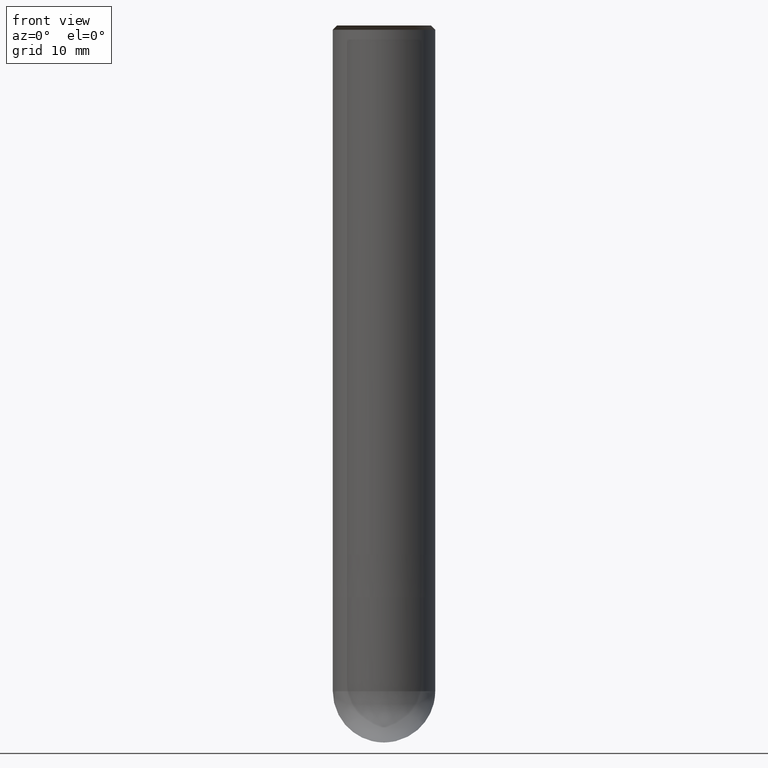
[diagram: clean part render]
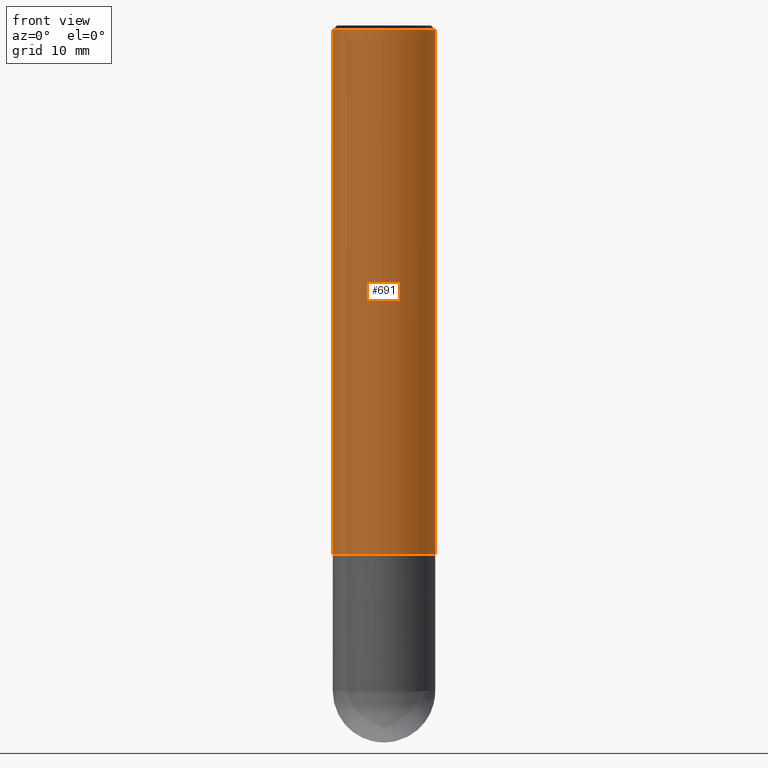
[diagram: same view with one face highlighted and labeled with its STEP entity id]
A machine part, front view. The second image highlights one B-rep face of the part: STEP entity #691.
In plain terms, the highlighted face is a freeform B-spline surface patch.
Its self-contained STEP definition (entity closure, byte-faithful):
#406=CARTESIAN_POINT('',(6.0,0.0,0.0));
#410=CARTESIAN_POINT('',(-6.0,0.0,0.0));
#411=CARTESIAN_POINT('',(6.0,0.0,61.5));
#415=CARTESIAN_POINT('',(-6.0,0.0,61.5));
#422=CARTESIAN_POINT('',(-6.0,-6.0,0.0));
#423=CARTESIAN_POINT('',(0.0,-6.0,0.0));
#424=CARTESIAN_POINT('',(6.0,-6.0,0.0));
#425=CARTESIAN_POINT('',(-6.0,-6.0,61.5));
#426=CARTESIAN_POINT('',(0.0,-6.0,61.5));
#427=CARTESIAN_POINT('',(6.0,-6.0,61.5));
#672=(
BOUNDED_SURFACE()
B_SPLINE_SURFACE(1,2,(
(#410,#422,#423,#424,#406),
(#415,#425,#426,#427,#411)
), .UNSPECIFIED.,.F.,.F.,.F.)
B_SPLINE_SURFACE_WITH_KNOTS((2,2),(3,2,3),(
0.0,1.0),(
0.0,0.5,1.0), .UNSPECIFIED.)
GEOMETRIC_REPRESENTATION_ITEM()
RATIONAL_B_SPLINE_SURFACE(((1.0,0.707106781187,1.0,0.707106781187,1.0),
(1.0,0.707106781187,1.0,0.707106781187,1.0)
))
REPRESENTATION_ITEM('')
SURFACE()
);
#673=(
BOUNDED_CURVE()
B_SPLINE_CURVE(2,(#406,#424,#423,#422,#410),.UNSPECIFIED.,.F.,.F.)
B_SPLINE_CURVE_WITH_KNOTS((3,2,3),
(0.0,0.5,1.0),.UNSPECIFIED.)
CURVE()
GEOMETRIC_REPRESENTATION_ITEM()
RATIONAL_B_SPLINE_CURVE((1.0,0.707106781187,1.0,0.707106781187,1.0))
REPRESENTATION_ITEM('')
);
#674=(
BOUNDED_CURVE()
B_SPLINE_CURVE(1,(#410,#415),.UNSPECIFIED.,.F.,.F.)
B_SPLINE_CURVE_WITH_KNOTS((2,2),
(0.0,1.0),.UNSPECIFIED.)
CURVE()
GEOMETRIC_REPRESENTATION_ITEM()
RATIONAL_B_SPLINE_CURVE((1.0,1.0))
REPRESENTATION_ITEM('')
);
#675=(
BOUNDED_CURVE()
B_SPLINE_CURVE(2,(#415,#425,#426,#427,#411),.UNSPECIFIED.,.F.,.F.)
B_SPLINE_CURVE_WITH_KNOTS((3,2,3),
(0.0,0.5,1.0),.UNSPECIFIED.)
CURVE()
GEOMETRIC_REPRESENTATION_ITEM()
RATIONAL_B_SPLINE_CURVE((1.0,0.707106781187,1.0,0.707106781187,1.0))
REPRESENTATION_ITEM('')
);
#676=(
BOUNDED_CURVE()
B_SPLINE_CURVE(1,(#411,#406),.UNSPECIFIED.,.F.,.F.)
B_SPLINE_CURVE_WITH_KNOTS((2,2),
(0.0,1.0),.UNSPECIFIED.)
CURVE()
GEOMETRIC_REPRESENTATION_ITEM()
RATIONAL_B_SPLINE_CURVE((1.0,1.0))
REPRESENTATION_ITEM('')
);
#677=VERTEX_POINT('',#406);
#678=VERTEX_POINT('',#410);
#679=VERTEX_POINT('',#411);
#680=VERTEX_POINT('',#415);
#681=EDGE_CURVE('',#677,#678,#673,.T.);
#682=EDGE_CURVE('',#678,#680,#674,.T.);
#683=EDGE_CURVE('',#680,#679,#675,.T.);
#684=EDGE_CURVE('',#679,#677,#676,.T.);
#685=ORIENTED_EDGE('',*,*,#681,.T.);
#686=ORIENTED_EDGE('',*,*,#682,.T.);
#687=ORIENTED_EDGE('',*,*,#683,.T.);
#688=ORIENTED_EDGE('',*,*,#684,.T.);
#689=EDGE_LOOP('',(#685,#686,#687,#688));
#690=FACE_OUTER_BOUND('',#689,.T.);
#691=ADVANCED_FACE('',(#690),#672,.T.);